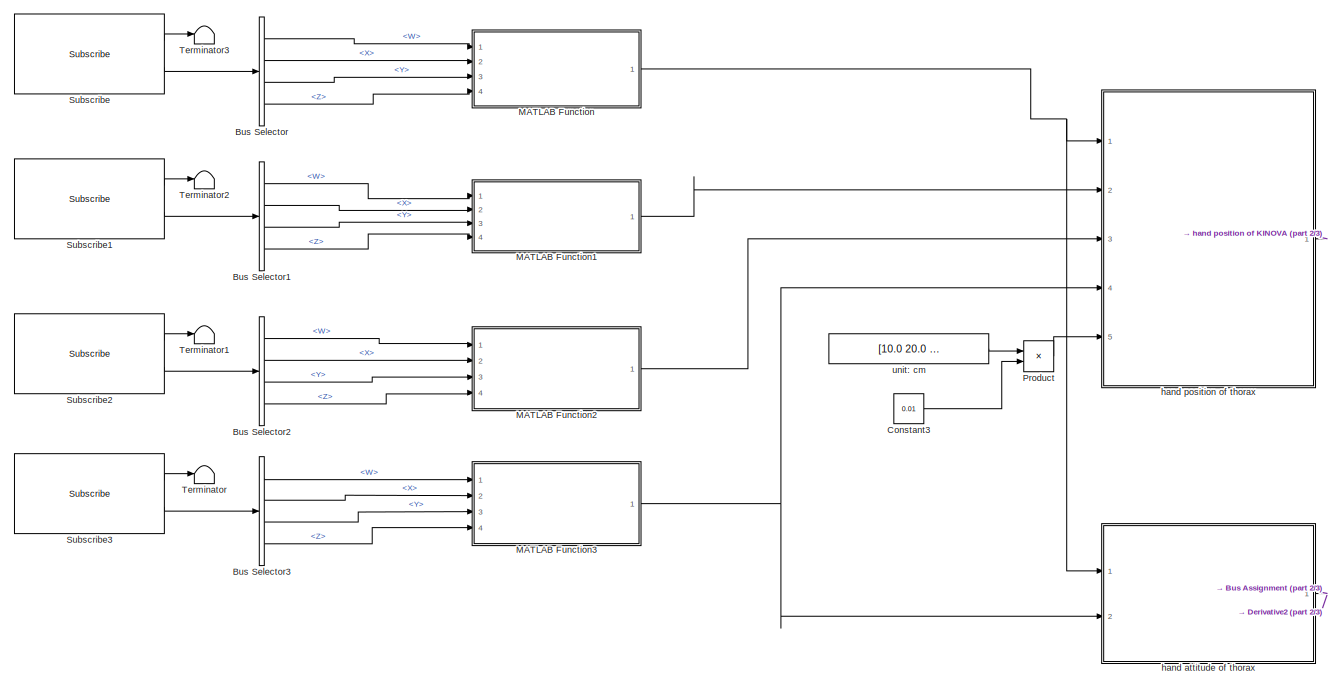
[diagram: root canvas - part 1/3, left side, full height]
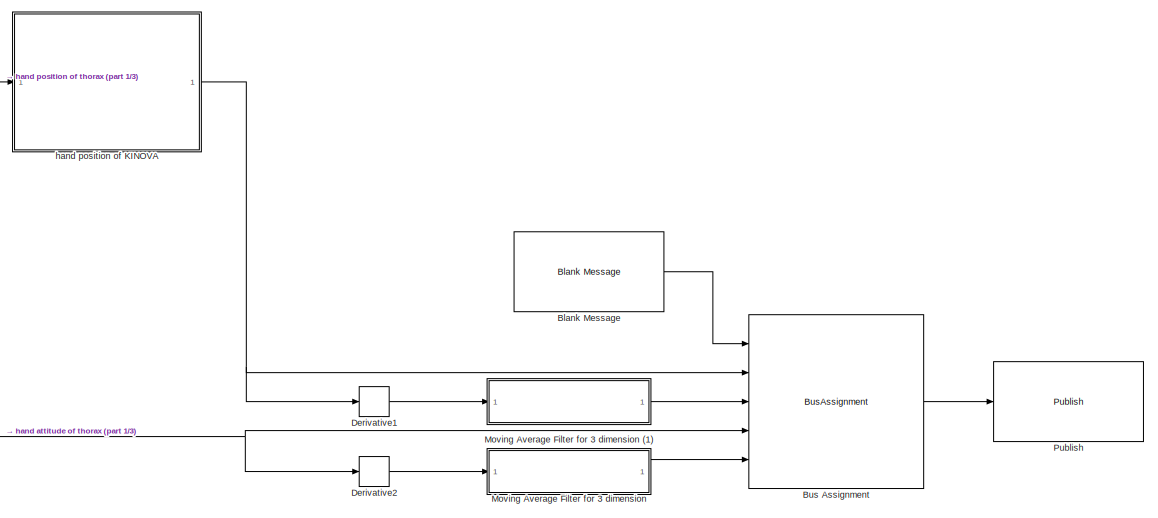
[diagram: root canvas - part 2/3, middle right region]
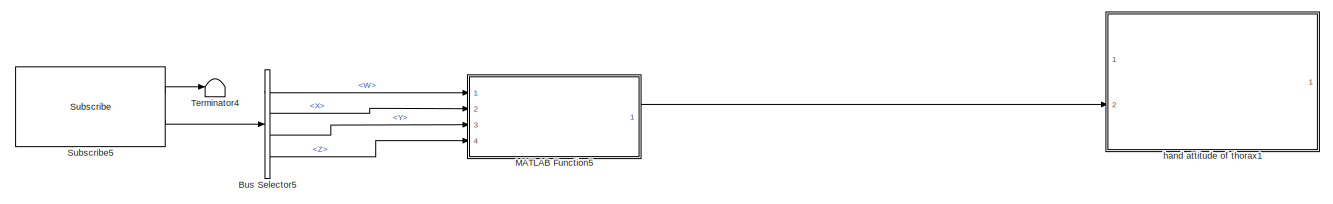
[diagram: root canvas - part 3/3, bottom left region]
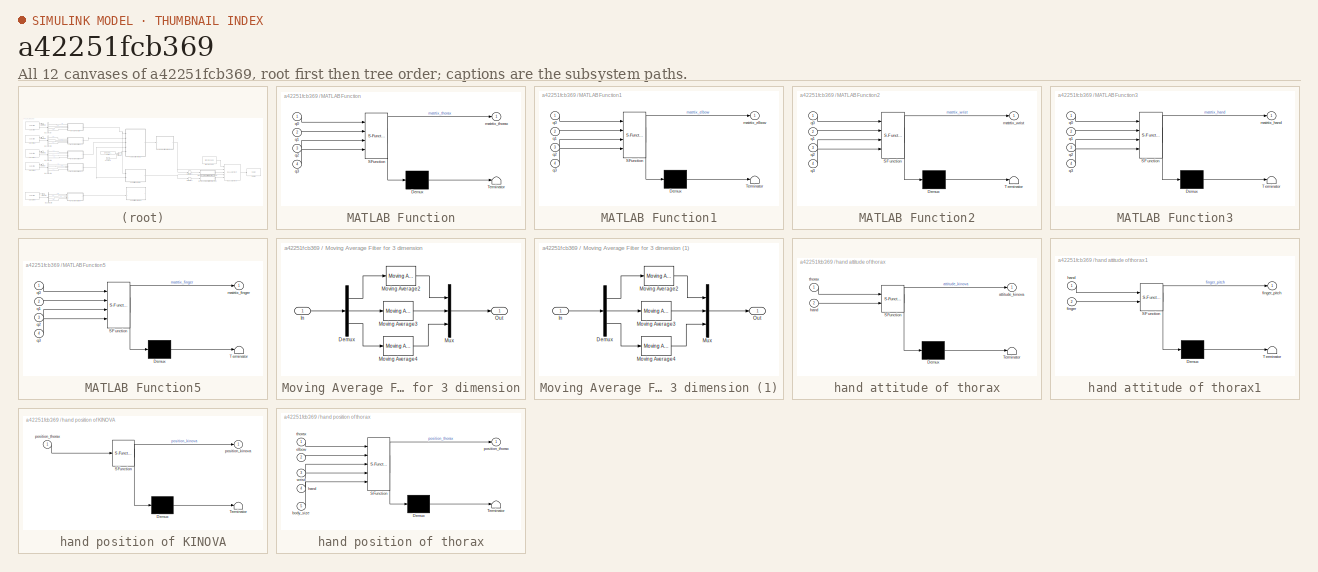
[diagram: thumbnail index - all 12 canvases of the model, root first then tree order]
MODEL slx_a42251fcb369
KIND model
CONFIG AbsTol = auto
CONFIG EnableMultiTasking = off
CONFIG FixedStep = 0.01
CONFIG MaxStep = auto
CONFIG MinStep = auto
CONFIG RelTol = 1e-3
CONFIG SampleTimeConstraint = Unconstrained
CONFIG SolverName = FixedStepAuto
CONFIG StartTime = 0.0
CONFIG StopTime = inf
WORKSPACE source: mxarray member
WORKSPACE MAF_len = 80
BLOCK [Reference] Blank Message  REF=robotlib/Blank Message
  Ports = [0, 1]
  SourceBlock = robotlib/Blank Message
  SourceProductBaseCode = RR
  SourceType = ROS Blank Message
BLOCK [BusAssignment] Bus Assignment
  AssignedSignals = Position,VelocityPos,Attitude,VelocityAtt
  Ports = [5, 1]
BLOCK [BusSelector] Bus Selector
  OutputSignals = Orientation.W,Orientation.X,Orientation.Y,Orientation.Z
  Ports = [1, 4]
BLOCK [BusSelector] Bus Selector1
  OutputSignals = Orientation.W,Orientation.X,Orientation.Y,Orientation.Z
  Ports = [1, 4]
BLOCK [BusSelector] Bus Selector2
  OutputSignals = Orientation.W,Orientation.X,Orientation.Y,Orientation.Z
  Ports = [1, 4]
BLOCK [BusSelector] Bus Selector3
  OutputSignals = Orientation.W,Orientation.X,Orientation.Y,Orientation.Z
  Ports = [1, 4]
BLOCK [BusSelector] Bus Selector5
  Commented = on
  OutputSignals = Orientation.W,Orientation.X,Orientation.Y,Orientation.Z
  Ports = [1, 4]
BLOCK [Constant] Constant3
  Value = 0.01
BLOCK [Derivative] Derivative1
BLOCK [Derivative] Derivative2
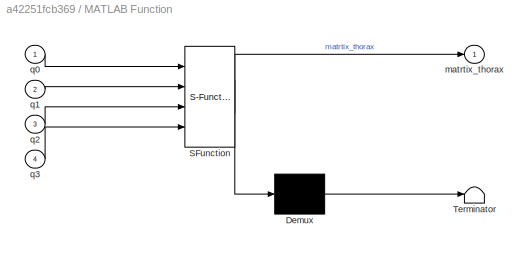
BLOCK [SubSystem] MATLAB Function
  ErrorFcn = Stateflow.Translate.translate
  PermitHierarchicalResolution = ExplicitOnly
  Ports = [4, 1]
  RequestExecContextInheritance = off
  SFBlockType = MATLAB Function
  TreatAsAtomicUnit = on
BLOCK [Demux] MATLAB Function/ Demux 
  Outputs = 1
  Ports = [1, 1]
BLOCK [S-Function] MATLAB Function/ SFunction 
  EnableBusSupport = on
  FunctionName = sf_sfun
  PortCounts = [4 2]
  Ports = [4, 2]
  SFcnIsStateOwnerBlock = off
  SFunctionDeploymentMode = off
  Tag = Stateflow S-Function 2
BLOCK [Terminator] MATLAB Function/ Terminator 
BLOCK [Outport] MATLAB Function/matrtix_thorax
BLOCK [Inport] MATLAB Function/q0
BLOCK [Inport] MATLAB Function/q1
  Port = 2
BLOCK [Inport] MATLAB Function/q2
  Port = 3
BLOCK [Inport] MATLAB Function/q3
  Port = 4
BLOCK [SubSystem] MATLAB Function1
  ErrorFcn = Stateflow.Translate.translate
  PermitHierarchicalResolution = ExplicitOnly
  Ports = [4, 1]
  RequestExecContextInheritance = off
  SFBlockType = MATLAB Function
  TreatAsAtomicUnit = on
BLOCK [Demux] MATLAB Function1/ Demux 
  Outputs = 1
  Ports = [1, 1]
BLOCK [S-Function] MATLAB Function1/ SFunction 
  EnableBusSupport = on
  FunctionName = sf_sfun
  PortCounts = [4 2]
  Ports = [4, 2]
  SFcnIsStateOwnerBlock = off
  SFunctionDeploymentMode = off
  Tag = Stateflow S-Function 1
BLOCK [Terminator] MATLAB Function1/ Terminator 
BLOCK [Outport] MATLAB Function1/matrtix_elbow
BLOCK [Inport] MATLAB Function1/q0
BLOCK [Inport] MATLAB Function1/q1
  Port = 2
BLOCK [Inport] MATLAB Function1/q2
  Port = 3
BLOCK [Inport] MATLAB Function1/q3
  Port = 4
BLOCK [SubSystem] MATLAB Function2
  ErrorFcn = Stateflow.Translate.translate
  PermitHierarchicalResolution = ExplicitOnly
  Ports = [4, 1]
  RequestExecContextInheritance = off
  SFBlockType = MATLAB Function
  TreatAsAtomicUnit = on
BLOCK [Demux] MATLAB Function2/ Demux 
  Outputs = 1
  Ports = [1, 1]
BLOCK [S-Function] MATLAB Function2/ SFunction 
  EnableBusSupport = on
  FunctionName = sf_sfun
  PortCounts = [4 2]
  Ports = [4, 2]
  SFcnIsStateOwnerBlock = off
  SFunctionDeploymentMode = off
  Tag = Stateflow S-Function 3
BLOCK [Terminator] MATLAB Function2/ Terminator 
BLOCK [Outport] MATLAB Function2/matrtix_wrist
BLOCK [Inport] MATLAB Function2/q0
BLOCK [Inport] MATLAB Function2/q1
  Port = 2
BLOCK [Inport] MATLAB Function2/q2
  Port = 3
BLOCK [Inport] MATLAB Function2/q3
  Port = 4
BLOCK [SubSystem] MATLAB Function3
  ErrorFcn = Stateflow.Translate.translate
  PermitHierarchicalResolution = ExplicitOnly
  Ports = [4, 1]
  RequestExecContextInheritance = off
  SFBlockType = MATLAB Function
  TreatAsAtomicUnit = on
BLOCK [Demux] MATLAB Function3/ Demux 
  Outputs = 1
  Ports = [1, 1]
BLOCK [S-Function] MATLAB Function3/ SFunction 
  EnableBusSupport = on
  FunctionName = sf_sfun
  PortCounts = [4 2]
  Ports = [4, 2]
  SFcnIsStateOwnerBlock = off
  SFunctionDeploymentMode = off
  Tag = Stateflow S-Function 4
BLOCK [Terminator] MATLAB Function3/ Terminator 
BLOCK [Outport] MATLAB Function3/matrtix_hand
BLOCK [Inport] MATLAB Function3/q0
BLOCK [Inport] MATLAB Function3/q1
  Port = 2
BLOCK [Inport] MATLAB Function3/q2
  Port = 3
BLOCK [Inport] MATLAB Function3/q3
  Port = 4
BLOCK [SubSystem] MATLAB Function5
  Commented = on
  ErrorFcn = Stateflow.Translate.translate
  PermitHierarchicalResolution = ExplicitOnly
  Ports = [4, 1]
  RequestExecContextInheritance = off
  SFBlockType = MATLAB Function
  TreatAsAtomicUnit = on
BLOCK [Demux] MATLAB Function5/ Demux 
  Outputs = 1
  Ports = [1, 1]
BLOCK [S-Function] MATLAB Function5/ SFunction 
  EnableBusSupport = on
  FunctionName = sf_sfun
  PortCounts = [4 2]
  Ports = [4, 2]
  SFcnIsStateOwnerBlock = off
  SFunctionDeploymentMode = off
  Tag = Stateflow S-Function 8
BLOCK [Terminator] MATLAB Function5/ Terminator 
BLOCK [Outport] MATLAB Function5/matrtix_finger
BLOCK [Inport] MATLAB Function5/q0
BLOCK [Inport] MATLAB Function5/q1
  Port = 2
BLOCK [Inport] MATLAB Function5/q2
  Port = 3
BLOCK [Inport] MATLAB Function5/q3
  Port = 4
BLOCK [SubSystem] Moving Average Filter for 3 dimension
  Ports = [1, 1]
  RequestExecContextInheritance = off
BLOCK [SubSystem] Moving Average Filter for 3 dimension (1)
  Ports = [1, 1]
  RequestExecContextInheritance = off
BLOCK [Demux] Moving Average Filter for 3 dimension (1)/Demux
  Outputs = 3
  Ports = [1, 3]
BLOCK [Inport] Moving Average Filter for 3 dimension (1)/In
BLOCK [Reference] Moving Average Filter for 3 dimension (1)/Moving Average2  REF=dspstat3/Moving
Average
  Ports = [1, 1]
  SourceBlock = dspstat3/Moving\nAverage
  SourceProductBaseCode = DS
  SourceType = dsp.simulink.MovingAverage
BLOCK [Reference] Moving Average Filter for 3 dimension (1)/Moving Average3  REF=dspstat3/Moving
Average
  Ports = [1, 1]
  SourceBlock = dspstat3/Moving\nAverage
  SourceProductBaseCode = DS
  SourceType = dsp.simulink.MovingAverage
BLOCK [Reference] Moving Average Filter for 3 dimension (1)/Moving Average4  REF=dspstat3/Moving
Average
  Ports = [1, 1]
  SourceBlock = dspstat3/Moving\nAverage
  SourceProductBaseCode = DS
  SourceType = dsp.simulink.MovingAverage
BLOCK [Mux] Moving Average Filter for 3 dimension (1)/Mux
  DisplayOption = bar
  Inputs = 3
  Ports = [3, 1]
BLOCK [Outport] Moving Average Filter for 3 dimension (1)/Out
BLOCK [Demux] Moving Average Filter for 3 dimension/Demux
  Outputs = 3
  Ports = [1, 3]
BLOCK [Inport] Moving Average Filter for 3 dimension/In
BLOCK [Reference] Moving Average Filter for 3 dimension/Moving Average2  REF=dspstat3/Moving
Average
  Ports = [1, 1]
  SourceBlock = dspstat3/Moving\nAverage
  SourceProductBaseCode = DS
  SourceType = dsp.simulink.MovingAverage
BLOCK [Reference] Moving Average Filter for 3 dimension/Moving Average3  REF=dspstat3/Moving
Average
  Ports = [1, 1]
  SourceBlock = dspstat3/Moving\nAverage
  SourceProductBaseCode = DS
  SourceType = dsp.simulink.MovingAverage
BLOCK [Reference] Moving Average Filter for 3 dimension/Moving Average4  REF=dspstat3/Moving
Average
  Ports = [1, 1]
  SourceBlock = dspstat3/Moving\nAverage
  SourceProductBaseCode = DS
  SourceType = dsp.simulink.MovingAverage
BLOCK [Mux] Moving Average Filter for 3 dimension/Mux
  DisplayOption = bar
  Inputs = 3
  Ports = [3, 1]
BLOCK [Outport] Moving Average Filter for 3 dimension/Out
BLOCK [Product] Product
  Ports = [2, 1]
BLOCK [Reference] Publish  REF=robotlib/Publish
  Ports = [1]
  SourceBlock = robotlib/Publish
  SourceProductBaseCode = RR
  SourceType = ROS Publish
BLOCK [Reference] Subscribe  REF=robotlib/Subscribe
  Ports = [0, 2]
  SourceBlock = robotlib/Subscribe
  SourceProductBaseCode = RR
  SourceType = ROS Subscribe
BLOCK [Reference] Subscribe1  REF=robotlib/Subscribe
  Ports = [0, 2]
  SourceBlock = robotlib/Subscribe
  SourceProductBaseCode = RR
  SourceType = ROS Subscribe
BLOCK [Reference] Subscribe2  REF=robotlib/Subscribe
  Ports = [0, 2]
  SourceBlock = robotlib/Subscribe
  SourceProductBaseCode = RR
  SourceType = ROS Subscribe
BLOCK [Reference] Subscribe3  REF=robotlib/Subscribe
  Ports = [0, 2]
  SourceBlock = robotlib/Subscribe
  SourceProductBaseCode = RR
  SourceType = ROS Subscribe
BLOCK [Reference] Subscribe5  REF=robotlib/Subscribe
  Commented = on
  Ports = [0, 2]
  SourceBlock = robotlib/Subscribe
  SourceProductBaseCode = RR
  SourceType = ROS Subscribe
BLOCK [Terminator] Terminator
BLOCK [Terminator] Terminator1
BLOCK [Terminator] Terminator2
BLOCK [Terminator] Terminator3
BLOCK [Terminator] Terminator4
  Commented = on
BLOCK [SubSystem] hand attitude of thorax
  ErrorFcn = Stateflow.Translate.translate
  PermitHierarchicalResolution = ExplicitOnly
  Ports = [2, 1]
  RequestExecContextInheritance = off
  SFBlockType = MATLAB Function
  TreatAsAtomicUnit = on
BLOCK [Demux] hand attitude of thorax/ Demux 
  Outputs = 1
  Ports = [1, 1]
BLOCK [S-Function] hand attitude of thorax/ SFunction 
  EnableBusSupport = on
  FunctionName = sf_sfun
  PortCounts = [2 2]
  Ports = [2, 2]
  SFcnIsStateOwnerBlock = off
  SFunctionDeploymentMode = off
  Tag = Stateflow S-Function 7
BLOCK [Terminator] hand attitude of thorax/ Terminator 
BLOCK [Outport] hand attitude of thorax/attitude_kinova
BLOCK [Inport] hand attitude of thorax/hand
  Port = 2
BLOCK [Inport] hand attitude of thorax/thorax
BLOCK [SubSystem] hand attitude of thorax1
  Commented = on
  ErrorFcn = Stateflow.Translate.translate
  PermitHierarchicalResolution = ExplicitOnly
  Ports = [2, 1]
  RequestExecContextInheritance = off
  SFBlockType = MATLAB Function
  TreatAsAtomicUnit = on
BLOCK [Demux] hand attitude of thorax1/ Demux 
  Outputs = 1
  Ports = [1, 1]
BLOCK [S-Function] hand attitude of thorax1/ SFunction 
  EnableBusSupport = on
  FunctionName = sf_sfun
  PortCounts = [2 2]
  Ports = [2, 2]
  SFcnIsStateOwnerBlock = off
  SFunctionDeploymentMode = off
  Tag = Stateflow S-Function 9
BLOCK [Terminator] hand attitude of thorax1/ Terminator 
BLOCK [Inport] hand attitude of thorax1/finger
  Port = 2
BLOCK [Outport] hand attitude of thorax1/finger_pitch
BLOCK [Inport] hand attitude of thorax1/hand
BLOCK [SubSystem] hand position of KINOVA
  ErrorFcn = Stateflow.Translate.translate
  PermitHierarchicalResolution = ExplicitOnly
  Ports = [1, 1]
  RequestExecContextInheritance = off
  SFBlockType = MATLAB Function
  TreatAsAtomicUnit = on
BLOCK [Demux] hand position of KINOVA/ Demux 
  Outputs = 1
  Ports = [1, 1]
BLOCK [S-Function] hand position of KINOVA/ SFunction 
  EnableBusSupport = on
  FunctionName = sf_sfun
  PortCounts = [1 2]
  Ports = [1, 2]
  SFcnIsStateOwnerBlock = off
  SFunctionDeploymentMode = off
  Tag = Stateflow S-Function 6
BLOCK [Terminator] hand position of KINOVA/ Terminator 
BLOCK [Outport] hand position of KINOVA/position_kinova
BLOCK [Inport] hand position of KINOVA/position_thorax
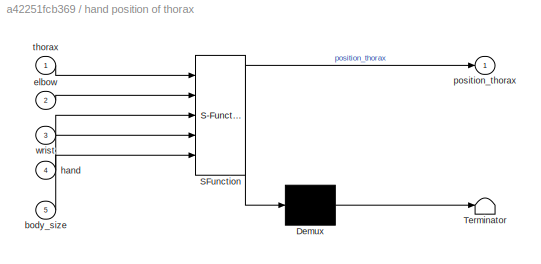
BLOCK [SubSystem] hand position of thorax
  ErrorFcn = Stateflow.Translate.translate
  PermitHierarchicalResolution = ExplicitOnly
  Ports = [5, 1]
  RequestExecContextInheritance = off
  SFBlockType = MATLAB Function
  TreatAsAtomicUnit = on
BLOCK [Demux] hand position of thorax/ Demux 
  Outputs = 1
  Ports = [1, 1]
BLOCK [S-Function] hand position of thorax/ SFunction 
  EnableBusSupport = on
  FunctionName = sf_sfun
  PortCounts = [5 2]
  Ports = [5, 2]
  SFcnIsStateOwnerBlock = off
  SFunctionDeploymentMode = off
  Tag = Stateflow S-Function 5
BLOCK [Terminator] hand position of thorax/ Terminator 
BLOCK [Inport] hand position of thorax/body_size
  Port = 5
BLOCK [Inport] hand position of thorax/elbow
  Port = 2
BLOCK [Inport] hand position of thorax/hand
  Port = 4
BLOCK [Outport] hand position of thorax/position_thorax
BLOCK [Inport] hand position of thorax/thorax
BLOCK [Inport] hand position of thorax/wrist
  Port = 3
BLOCK [Constant] unit: cm
  Value = [10.0 20.0 23.0 27.0 6.0]
LINE Blank Message:1 -> Bus Assignment:1
LINE Bus Assignment:1 -> Publish:1
LINE Bus Selector1:1 -> MATLAB Function1:1
LINE Bus Selector1:2 -> MATLAB Function1:2
LINE Bus Selector1:3 -> MATLAB Function1:3
LINE Bus Selector1:4 -> MATLAB Function1:4
LINE Bus Selector2:1 -> MATLAB Function2:1
LINE Bus Selector2:2 -> MATLAB Function2:2
LINE Bus Selector2:3 -> MATLAB Function2:3
LINE Bus Selector2:4 -> MATLAB Function2:4
LINE Bus Selector3:1 -> MATLAB Function3:1
LINE Bus Selector3:2 -> MATLAB Function3:2
LINE Bus Selector3:3 -> MATLAB Function3:3
LINE Bus Selector3:4 -> MATLAB Function3:4
LINE Bus Selector5:1 -> MATLAB Function5:1
LINE Bus Selector5:2 -> MATLAB Function5:2
LINE Bus Selector5:3 -> MATLAB Function5:3
LINE Bus Selector5:4 -> MATLAB Function5:4
LINE Bus Selector:1 -> MATLAB Function:1
LINE Bus Selector:2 -> MATLAB Function:2
LINE Bus Selector:3 -> MATLAB Function:3
LINE Bus Selector:4 -> MATLAB Function:4
LINE Constant3:1 -> Product:2
LINE Derivative1:1 -> Moving Average Filter for 3 dimension (1):1
LINE Derivative2:1 -> Moving Average Filter for 3 dimension:1
LINE MATLAB Function1:1 -> hand position of thorax:2
LINE MATLAB Function2:1 -> hand position of thorax:3
NET MATLAB Function3:1 -> hand attitude of thorax:2, hand position of thorax:4
LINE MATLAB Function5:1 -> hand attitude of thorax1:2
NET MATLAB Function:1 -> hand attitude of thorax:1, hand position of thorax:1
LINE Moving Average Filter for 3 dimension (1)/Demux:1 -> Moving Average Filter for 3 dimension (1)/Moving Average2:1
LINE Moving Average Filter for 3 dimension (1)/Demux:2 -> Moving Average Filter for 3 dimension (1)/Moving Average3:1
LINE Moving Average Filter for 3 dimension (1)/Demux:3 -> Moving Average Filter for 3 dimension (1)/Moving Average4:1
LINE Moving Average Filter for 3 dimension (1)/In:1 -> Moving Average Filter for 3 dimension (1)/Demux:1
LINE Moving Average Filter for 3 dimension (1)/Moving Average2:1 -> Moving Average Filter for 3 dimension (1)/Mux:1
LINE Moving Average Filter for 3 dimension (1)/Moving Average3:1 -> Moving Average Filter for 3 dimension (1)/Mux:2
LINE Moving Average Filter for 3 dimension (1)/Moving Average4:1 -> Moving Average Filter for 3 dimension (1)/Mux:3
LINE Moving Average Filter for 3 dimension (1)/Mux:1 -> Moving Average Filter for 3 dimension (1)/Out:1
LINE Moving Average Filter for 3 dimension (1):1 -> Bus Assignment:3
LINE Moving Average Filter for 3 dimension/Demux:1 -> Moving Average Filter for 3 dimension/Moving Average2:1
LINE Moving Average Filter for 3 dimension/Demux:2 -> Moving Average Filter for 3 dimension/Moving Average3:1
LINE Moving Average Filter for 3 dimension/Demux:3 -> Moving Average Filter for 3 dimension/Moving Average4:1
LINE Moving Average Filter for 3 dimension/In:1 -> Moving Average Filter for 3 dimension/Demux:1
LINE Moving Average Filter for 3 dimension/Moving Average2:1 -> Moving Average Filter for 3 dimension/Mux:1
LINE Moving Average Filter for 3 dimension/Moving Average3:1 -> Moving Average Filter for 3 dimension/Mux:2
LINE Moving Average Filter for 3 dimension/Moving Average4:1 -> Moving Average Filter for 3 dimension/Mux:3
LINE Moving Average Filter for 3 dimension/Mux:1 -> Moving Average Filter for 3 dimension/Out:1
LINE Moving Average Filter for 3 dimension:1 -> Bus Assignment:5
LINE Product:1 -> hand position of thorax:5
LINE Subscribe1:1 -> Terminator2:1
LINE Subscribe1:2 -> Bus Selector1:1
LINE Subscribe2:1 -> Terminator1:1
LINE Subscribe2:2 -> Bus Selector2:1
LINE Subscribe3:1 -> Terminator:1
LINE Subscribe3:2 -> Bus Selector3:1
LINE Subscribe5:1 -> Terminator4:1
LINE Subscribe5:2 -> Bus Selector5:1
LINE Subscribe:1 -> Terminator3:1
LINE Subscribe:2 -> Bus Selector:1
NET hand attitude of thorax:1 -> Bus Assignment:4, Derivative2:1
NET hand position of KINOVA:1 -> Bus Assignment:2, Derivative1:1
LINE hand position of thorax:1 -> hand position of KINOVA:1
LINE unit: cm:1 -> Product:1
note: NET lines group one-source signal fan-out (src -> all destinations, sorted); 1:1 wires keep LINE
CHART MATLAB Function1 states=1 transitions=1
  STATE_LABEL 'eML_blk_kernel()'
  STATE_LABEL 'SCRIPT:\nfunction matrtix_elbow = fcn(q0,q1,q2,q3)\n\n\n\nmatrtix_elbow=[2*(q0^2+q1^2)-1  2*q1*q2-2*q0*q3  2*q1*q3+2*q0*q2;...\n                 2*q1*q2+2*q0*q3  2*(q0^2+q2^2)-1  2*q2*q3-2*q0*q1; ...\n                 2*q1*q3-2*q0*q2  2*q2*q3+2*q0*q1  2*(q0^2+q3^2)-1];\n'
CHART MATLAB Function states=1 transitions=1
  STATE_LABEL 'eML_blk_kernel()'
  STATE_LABEL 'SCRIPT:\nfunction matrtix_thorax = fcn(q0,q1,q2,q3)\n\n% q1=-q1;\n% q2=-q2;\n% q3=-q3;\n\nmatrtix_thorax=[2*(q0^2+q1^2)-1  2*q1*q2-2*q0*q3  2*q1*q3+2*q0*q2;...\n                 2*q1*q2+2*q0*q3  2*(q0^2+q2^2)-1  2*q2*q3-2*q0*q1; ...\n                 2*q1*q3-2*q0*q2  2*q2*q3+2*q0*q1  2*(q0^2+q3^2)-1];\n'
CHART MATLAB Function2 states=1 transitions=1
  STATE_LABEL 'eML_blk_kernel()'
  STATE_LABEL 'SCRIPT:\nfunction matrtix_wrist = fcn(q0,q1,q2,q3)\n\n\n\nmatrtix_wrist=[2*(q0^2+q1^2)-1  2*q1*q2-2*q0*q3  2*q1*q3+2*q0*q2;...\n                 2*q1*q2+2*q0*q3  2*(q0^2+q2^2)-1  2*q2*q3-2*q0*q1; ...\n                 2*q1*q3-2*q0*q2  2*q2*q3+2*q0*q1  2*(q0^2+q3^2)-1];\n'
CHART MATLAB Function3 states=1 transitions=1
  STATE_LABEL 'eML_blk_kernel()'
  STATE_LABEL 'SCRIPT:\nfunction matrtix_hand = fcn(q0,q1,q2,q3)\n\n\n\nmatrtix_hand=[2*(q0^2+q1^2)-1  2*q1*q2-2*q0*q3  2*q1*q3+2*q0*q2;...\n                 2*q1*q2+2*q0*q3  2*(q0^2+q2^2)-1  2*q2*q3-2*q0*q1; ...\n                 2*q1*q3-2*q0*q2  2*q2*q3+2*q0*q1  2*(q0^2+q3^2)-1];\n'
CHART hand position of thorax states=1 transitions=1
  STATE_LABEL 'eML_blk_kernel()'
  STATE_LABEL "SCRIPT:\nfunction position_thorax = fcn(thorax, elbow, wrist, hand, body_size)\n\nthorax=thorax^-1;\nshoulder_position = [-body_size(1) -body_size(2) 0]';\nupperarm_position = thorax*(elbow*[body_size(3) 0 0]');\nforearm_position = thorax*(wrist*[body_size(4) 0 0]');\nhand_position = thorax*(hand*[body_size(5) 0 0]');\n\nposition_thorax = shoulder_position + upperarm_position + forearm_position + hand_posi...<+6ch>"
CHART hand position of KINOVA states=1 transitions=1
  STATE_LABEL 'eML_blk_kernel()'
  STATE_LABEL 'SCRIPT:\nfunction position_kinova = fcn(position_thorax)\n\nthorax_to_kinova_base=[0 0 1;0 1 0;-1 0 0];\nposition_kinova = thorax_to_kinova_base*position_thorax;\n\n'
CHART hand attitude of thorax states=1 transitions=1
  STATE_LABEL 'eML_blk_kernel()'
  STATE_LABEL "SCRIPT:\nfunction attitude_kinova = fcn(thorax, hand)\n\nthorax = thorax^-1;\nthorax_to_kinova_base=[0 0 1;0 1 0;-1 0 0];\n\n% 加入軸角表示式\nA = thorax_to_kinova_base*thorax*hand;\ntheta0e = rotm2axang(A).';\nattitude_kinova = theta0e(1:3)*theta0e(4); % axis angle\n"
CHART MATLAB Function5 states=1 transitions=1
  STATE_LABEL 'eML_blk_kernel()'
  STATE_LABEL 'SCRIPT:\nfunction matrtix_finger = fcn(q0,q1,q2,q3)\n\nmatrtix_finger=[2*(q0^2+q1^2)-1  2*q1*q2-2*q0*q3  2*q1*q3+2*q0*q2;...\n                 2*q1*q2+2*q0*q3  2*(q0^2+q2^2)-1  2*q2*q3-2*q0*q1; ...\n                 2*q1*q3-2*q0*q2  2*q2*q3+2*q0*q1  2*(q0^2+q3^2)-1];\n\n\n'
CHART hand attitude of thorax1 states=1 transitions=1
  STATE_LABEL 'eML_blk_kernel()'
  STATE_LABEL 'SCRIPT:\nfunction finger_pitch = fcn(hand, finger)\n\nhand = hand^-1;\nRhf = hand*finger;\nfinger_pitch = -asin(Rhf(3,1));\n'
CHART  states=0 transitions=0
CHART  states=0 transitions=0
CHART  states=0 transitions=0
CHART  states=0 transitions=0
CHART  states=0 transitions=0
CHART  states=0 transitions=0
CHART  states=0 transitions=0
CHART  states=0 transitions=0
CHART  states=0 transitions=0
